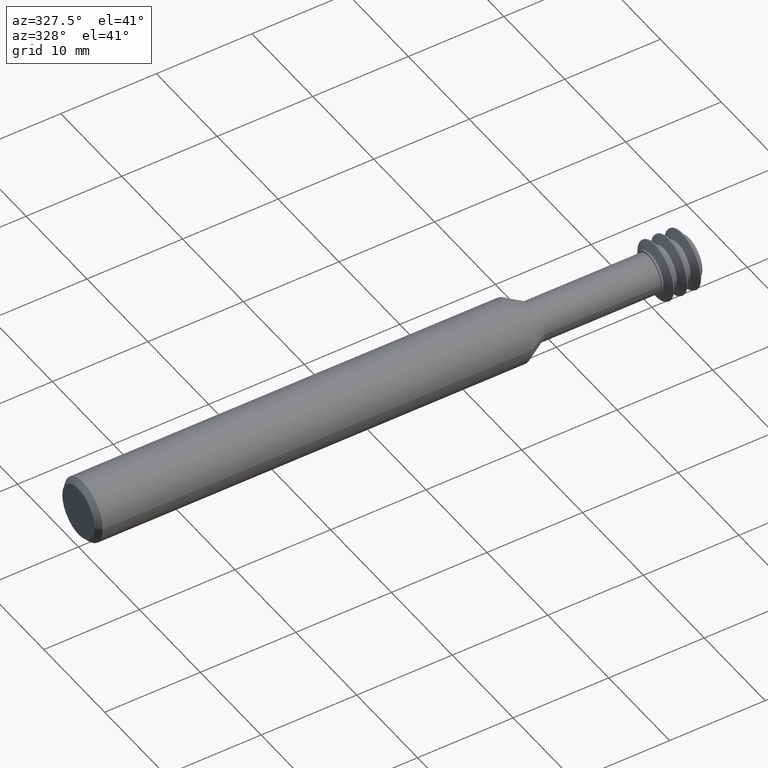
[diagram: clean part render]
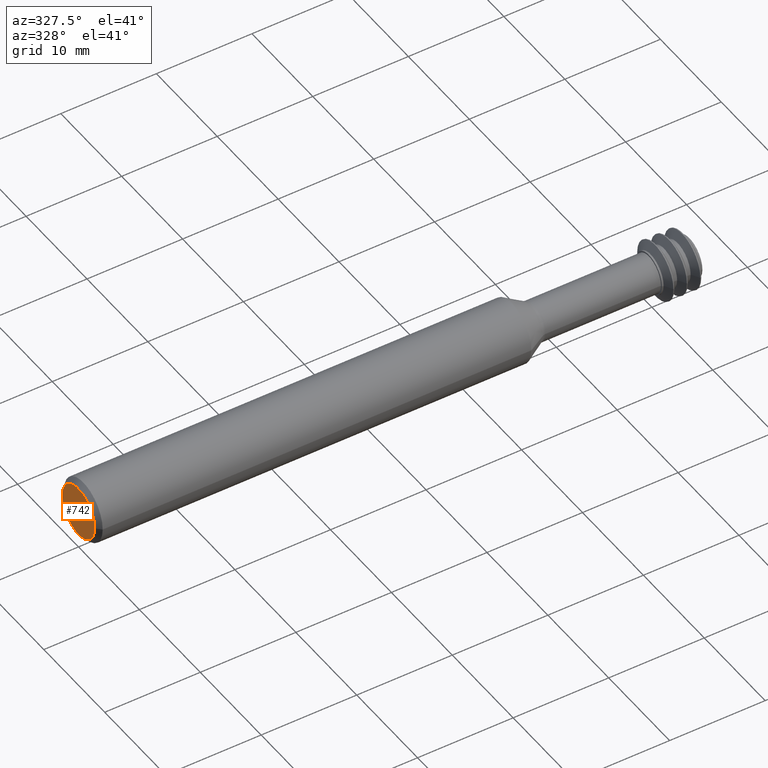
[diagram: same view with one face highlighted and labeled with its STEP entity id]
A machine part, auxiliary view. The second image highlights one B-rep face of the part: STEP entity #742.
In plain terms, the highlighted planar face has unit normal (1, -0, 0).
Its self-contained STEP definition (entity closure, byte-faithful):
#89 = FACE_OUTER_BOUND ( 'NONE', #512, .T. ) ;
#110 = AXIS2_PLACEMENT_3D ( 'NONE', #908, #905, #414 ) ;
#151 = CARTESIAN_POINT ( 'NONE',  ( -2.347919765572537244E-20, -0.1048500000000000126, 1.406506848820735372E-17 ) ) ;
#250 = CIRCLE ( 'NONE', #507, 0.1048500000000000126 ) ;
#275 = DIRECTION ( 'NONE',  ( -2.239313081137374464E-19, -1.000000000000000000, 0.000000000000000000 ) ) ;
#298 = CARTESIAN_POINT ( 'NONE',  ( 0.000000000000000000, -1.995961303650745011E-19, 0.000000000000000000 ) ) ;
#414 = DIRECTION ( 'NONE',  ( 2.239313081137374464E-19, 1.000000000000000000, 0.000000000000000000 ) ) ;
#446 = CARTESIAN_POINT ( 'NONE',  ( 0.000000000000000000, -1.995961303650745011E-19, 0.000000000000000000 ) ) ;
#501 = CARTESIAN_POINT ( 'NONE',  ( 2.347919765572537244E-20, 0.1048500000000000126, 0.000000000000000000 ) ) ;
#507 = AXIS2_PLACEMENT_3D ( 'NONE', #298, #688, #275 ) ;
#512 = EDGE_LOOP ( 'NONE', ( #553, #758 ) ) ;
#514 = EDGE_CURVE ( 'NONE', #718, #928, #250, .T. ) ;
#553 = ORIENTED_EDGE ( 'NONE', *, *, #514, .T. ) ;
#688 = DIRECTION ( 'NONE',  ( -1.000000000000000000, 2.239313081137374464E-19, -0.000000000000000000 ) ) ;
#718 = VERTEX_POINT ( 'NONE', #501 ) ;
#742 = ADVANCED_FACE ( 'NONE', ( #89 ), #823, .F. ) ;
#756 = EDGE_CURVE ( 'NONE', #928, #718, #897, .T. ) ;
#758 = ORIENTED_EDGE ( 'NONE', *, *, #756, .T. ) ;
#823 = PLANE ( 'NONE',  #110 ) ;
#897 = CIRCLE ( 'NONE', #929, 0.1048500000000000126 ) ;
#905 = DIRECTION ( 'NONE',  ( 1.000000000000000000, -2.239313081137374464E-19, 0.000000000000000000 ) ) ;
#908 = CARTESIAN_POINT ( 'NONE',  ( 2.092414648153120285E-20, 0.1048500000000000126, 0.000000000000000000 ) ) ;
#928 = VERTEX_POINT ( 'NONE', #151 ) ;
#929 = AXIS2_PLACEMENT_3D ( 'NONE', #446, #983, #989 ) ;
#983 = DIRECTION ( 'NONE',  ( -1.000000000000000000, 2.239313081137374464E-19, -0.000000000000000000 ) ) ;
#989 = DIRECTION ( 'NONE',  ( -2.239313081137374464E-19, -1.000000000000000000, 0.000000000000000000 ) ) ;